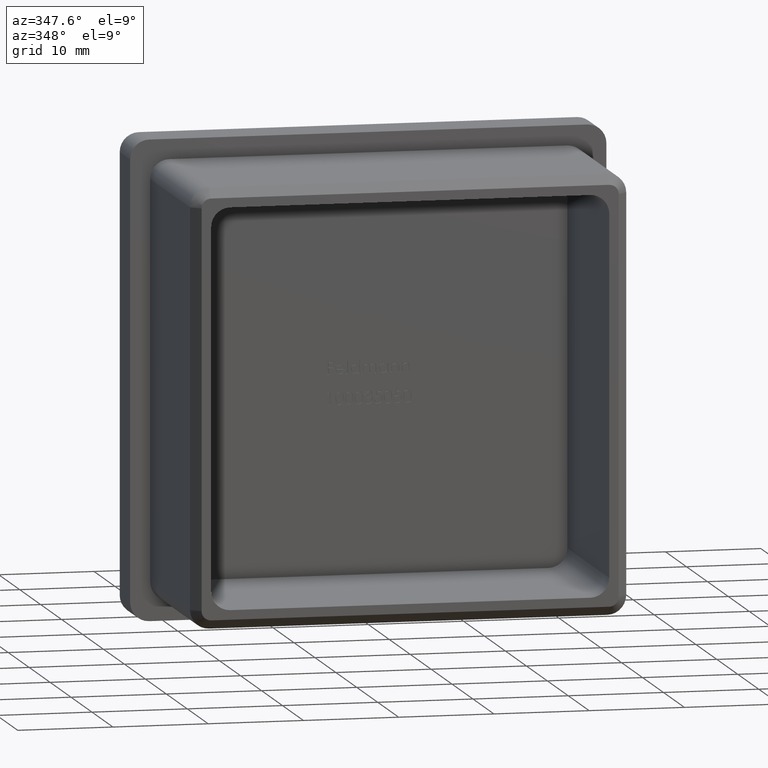
[diagram: clean part render]
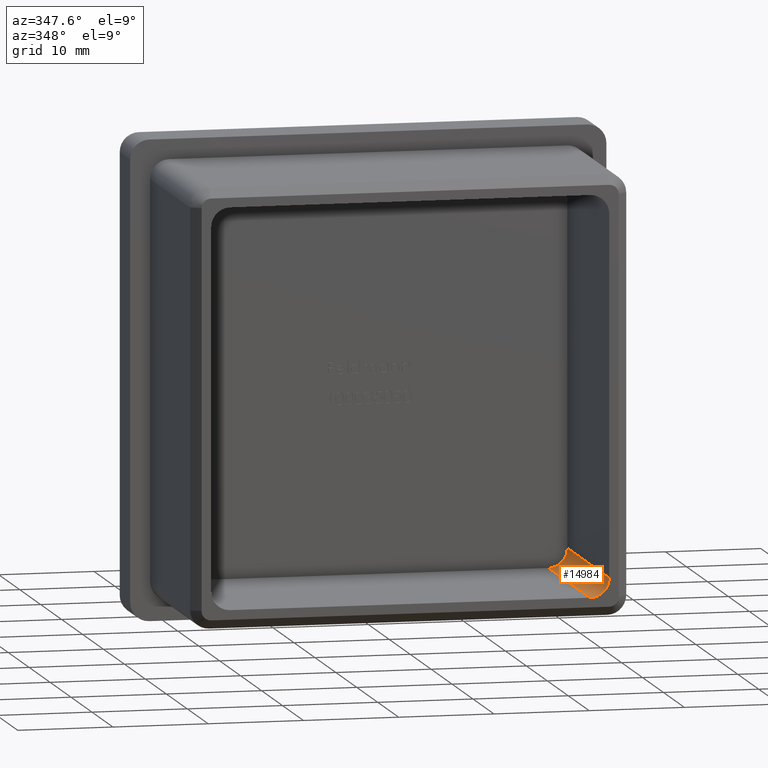
[diagram: same view with one face highlighted and labeled with its STEP entity id]
A machine part, auxiliary view. The second image highlights one B-rep face of the part: STEP entity #14984.
In plain terms, the highlighted cylindrical surface (edge-blend (fillet) strip) has radius 2 mm, axis along (0, -1, 0).
Its self-contained STEP definition (entity closure, byte-faithful):
#825 = ORIENTED_EDGE ( 'NONE', *, *, #12285, .F. ) ;
#2294 = DIRECTION ( 'NONE',  ( 0.0000000000000000000, 0.0000000000000000000, 1.000000000000000000 ) ) ;
#2681 = FACE_OUTER_BOUND ( 'NONE', #6219, .T. ) ;
#2756 = VERTEX_POINT ( 'NONE', #7378 ) ;
#2821 = LINE ( 'NONE', #13759, #11583 ) ;
#3532 = DIRECTION ( 'NONE',  ( 0.0000000000000000000, -1.000000000000000000, 0.0000000000000000000 ) ) ;
#3806 = CARTESIAN_POINT ( 'NONE',  ( 20.90000000000000200, -20.00000000000000000, -18.90000000000000200 ) ) ;
#4704 = EDGE_CURVE ( 'NONE', #2756, #9050, #2821, .T. ) ;
#4835 = CARTESIAN_POINT ( 'NONE',  ( 18.90000000000000900, -20.00000000000000000, -18.90000000000000200 ) ) ;
#4877 = CIRCLE ( 'NONE', #15430, 1.999999999999998200 ) ;
#5176 = CARTESIAN_POINT ( 'NONE',  ( 18.90000000000000900, -20.00000000000000000, -20.90000000000000600 ) ) ;
#5368 = CARTESIAN_POINT ( 'NONE',  ( 18.90000000000000900, 0.0000000000000000000, -18.90000000000000200 ) ) ;
#5825 = EDGE_CURVE ( 'NONE', #9050, #9170, #4877, .T. ) ;
#6219 = EDGE_LOOP ( 'NONE', ( #13630, #8816, #9909, #825 ) ) ;
#6768 = DIRECTION ( 'NONE',  ( -0.0000000000000000000, -1.000000000000000000, -0.0000000000000000000 ) ) ;
#7378 = CARTESIAN_POINT ( 'NONE',  ( 20.90000000000000200, 0.0000000000000000000, -18.90000000000000200 ) ) ;
#7759 = CIRCLE ( 'NONE', #8719, 1.999999999999998200 ) ;
#8719 = AXIS2_PLACEMENT_3D ( 'NONE', #5368, #14706, #2294 ) ;
#8816 = ORIENTED_EDGE ( 'NONE', *, *, #4704, .F. ) ;
#9050 = VERTEX_POINT ( 'NONE', #3806 ) ;
#9147 = DIRECTION ( 'NONE',  ( 0.0000000000000000000, 0.0000000000000000000, -1.000000000000000000 ) ) ;
#9170 = VERTEX_POINT ( 'NONE', #5176 ) ;
#9200 = CARTESIAN_POINT ( 'NONE',  ( 18.90000000000000900, -20.00000000000000000, -18.90000000000000200 ) ) ;
#9352 = DIRECTION ( 'NONE',  ( -0.0000000000000000000, 1.000000000000000000, -0.0000000000000000000 ) ) ;
#9766 = VECTOR ( 'NONE', #13688, 1000.000000000000000 ) ;
#9909 = ORIENTED_EDGE ( 'NONE', *, *, #11894, .F. ) ;
#10675 = CYLINDRICAL_SURFACE ( 'NONE', #11125, 1.999999999999998200 ) ;
#11125 = AXIS2_PLACEMENT_3D ( 'NONE', #4835, #3532, #13077 ) ;
#11583 = VECTOR ( 'NONE', #6768, 1000.000000000000000 ) ;
#11894 = EDGE_CURVE ( 'NONE', #13849, #2756, #7759, .T. ) ;
#12285 = EDGE_CURVE ( 'NONE', #9170, #13849, #13292, .T. ) ;
#12458 = CARTESIAN_POINT ( 'NONE',  ( 18.90000000000000900, 0.0000000000000000000, -20.90000000000000600 ) ) ;
#13077 = DIRECTION ( 'NONE',  ( 0.0000000000000000000, 0.0000000000000000000, -1.000000000000000000 ) ) ;
#13292 = LINE ( 'NONE', #12458, #9766 ) ;
#13630 = ORIENTED_EDGE ( 'NONE', *, *, #5825, .F. ) ;
#13688 = DIRECTION ( 'NONE',  ( 0.0000000000000000000, 1.000000000000000000, -0.0000000000000000000 ) ) ;
#13759 = CARTESIAN_POINT ( 'NONE',  ( 20.90000000000000200, -20.00000000000000000, -18.90000000000000200 ) ) ;
#13849 = VERTEX_POINT ( 'NONE', #15411 ) ;
#14706 = DIRECTION ( 'NONE',  ( -0.0000000000000000000, -1.000000000000000000, -0.0000000000000000000 ) ) ;
#14984 = ADVANCED_FACE ( 'NONE', ( #2681 ), #10675, .F. ) ;
#15411 = CARTESIAN_POINT ( 'NONE',  ( 18.90000000000000900, 0.0000000000000000000, -20.90000000000000600 ) ) ;
#15430 = AXIS2_PLACEMENT_3D ( 'NONE', #9200, #9352, #9147 ) ;